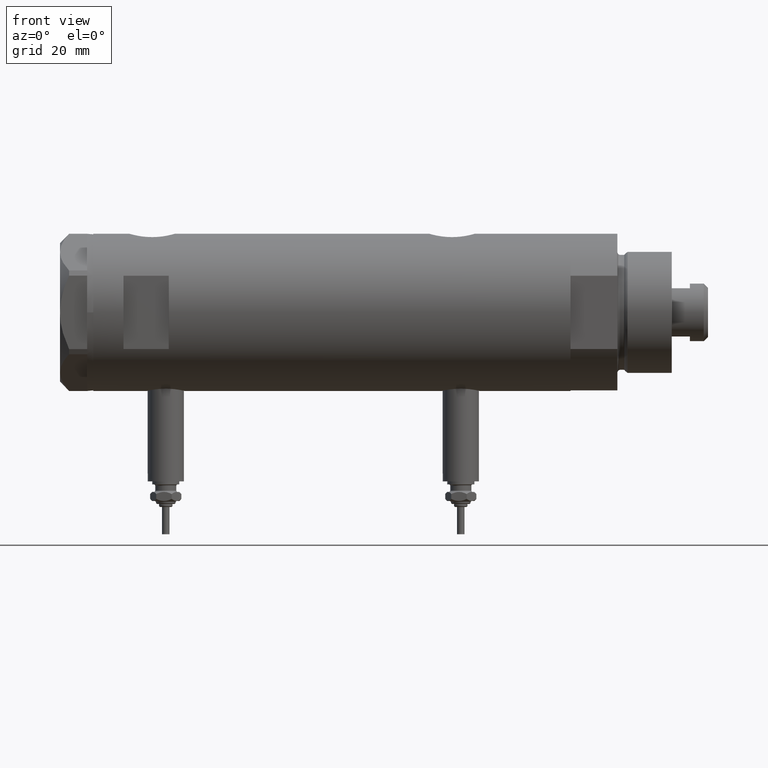
[diagram: clean part render]
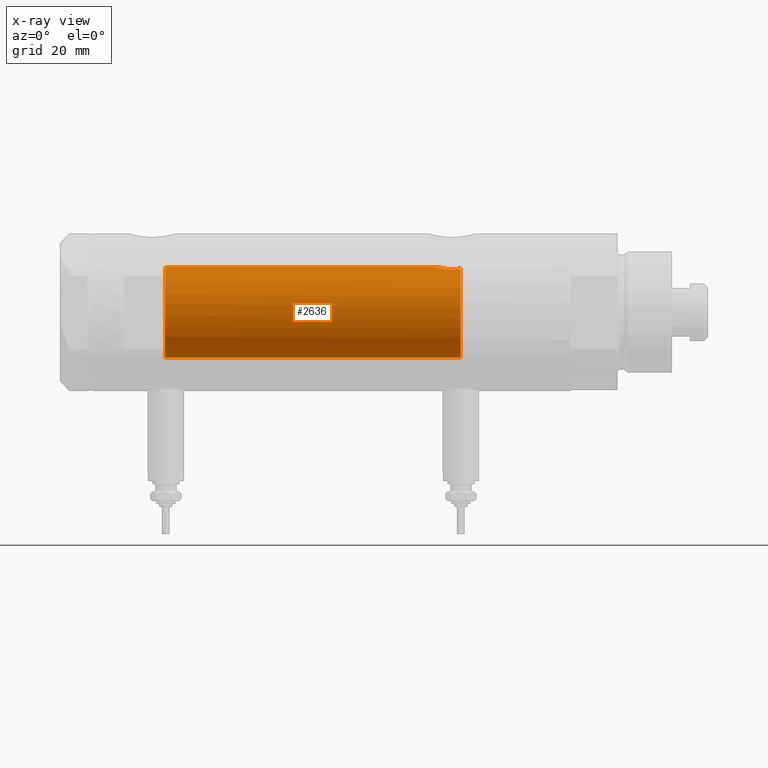
[diagram: x-ray — body ghosted, one internal face saturated and labeled with its STEP entity id]
A machine part, front view, then the same camera in x-ray: the body is ghosted and one INTERNAL B-rep face — a face not visible from any outside direction — is saturated and labeled: STEP entity #2636.
In plain terms, the highlighted cylindrical surface (partial cylindrical patch) has radius 15 mm, axis along (1, 0, -0).
Its self-contained STEP definition (entity closure, byte-faithful):
#45 = FACE_OUTER_BOUND ( 'NONE', #2878, .T. ) ;
#88 = AXIS2_PLACEMENT_3D ( 'NONE', #4889, #481, #3372 ) ;
#141 = DIRECTION ( 'NONE',  ( 0.000000000000000000, 0.000000000000000000, 1.000000000000000000 ) ) ;
#182 = CIRCLE ( 'NONE', #3865, 15.00000000000000000 ) ;
#204 = DIRECTION ( 'NONE',  ( 1.000000000000000000, 0.000000000000000000, 0.000000000000000000 ) ) ;
#216 = CARTESIAN_POINT ( 'NONE',  ( 0.000000000000000000, 0.000000000000000000, -42.55000000000000426 ) ) ;
#222 = CARTESIAN_POINT ( 'NONE',  ( 14.81710879718117546, -2.343063746046468054, -35.48067662538952050 ) ) ;
#230 = B_SPLINE_CURVE_WITH_KNOTS ( 'NONE', 3,
 ( #2293, #4124, #5103, #2680, #2710, #795, #3199, #1274, #5704, #6112, #1817, #4686, #3226, #1685, #2654, #3709, #2267, #4753, #6079, #2236, #282, #222, #4261, #3773, #3736, #2750, #5742, #5200, #4227, #6173 ),
 .UNSPECIFIED., .F., .F.,
 ( 4, 2, 2, 2, 2, 2, 2, 2, 2, 2, 2, 2, 2, 2, 4 ),
 ( 0.004672505804584289359, 0.005337629501999303222, 0.006002753199414317953, 0.006667876896829330949, 0.007333000594244345680, 0.007998124291659358676, 0.008663247989074373406, 0.009328371686489388137, 0.009993495383904402868, 0.01132374277873441151, 0.01265399017356442016, 0.01331911387097942448, 0.01398423756839442880, 0.01464936126580943312, 0.01531448496322443745 ),
 .UNSPECIFIED. ) ;
#277 = CARTESIAN_POINT ( 'NONE',  ( 15.00000000000000000, 0.000000000000000000, 54.58500000000000085 ) ) ;
#282 = CARTESIAN_POINT ( 'NONE',  ( 14.72015646623405871, -2.909233045280601893, -35.82572079632733164 ) ) ;
#481 = DIRECTION ( 'NONE',  ( -0.000000000000000000, -0.000000000000000000, -1.000000000000000000 ) ) ;
#512 = DIRECTION ( 'NONE',  ( -0.000000000000000000, -0.000000000000000000, -1.000000000000000000 ) ) ;
#539 = CYLINDRICAL_SURFACE ( 'NONE', #88, 15.00000000000000000 ) ;
#724 = CARTESIAN_POINT ( 'NONE',  ( 14.82638779339053947, -2.275571356824482638, 55.15000000000000568 ) ) ;
#752 = CARTESIAN_POINT ( 'NONE',  ( 14.98404828787190723, -0.7909490205761879889, 54.63356230794191504 ) ) ;
#795 = CARTESIAN_POINT ( 'NONE',  ( 14.25856516724843992, -4.658255869285516937, -41.17044016644936733 ) ) ;
#929 = VERTEX_POINT ( 'NONE', #3077 ) ;
#1190 = CARTESIAN_POINT ( 'NONE',  ( 0.000000000000000000, 0.000000000000000000, 55.15000000000000568 ) ) ;
#1274 = CARTESIAN_POINT ( 'NONE',  ( 14.20819413761015504, -4.809312895991456394, -40.51713251522166814 ) ) ;
#1402 = EDGE_CURVE ( 'NONE', #929, #2117, #3937, .T. ) ;
#1685 = CARTESIAN_POINT ( 'NONE',  ( 14.23984499268011028, -4.714778477509579346, -38.53008258614764969 ) ) ;
#1694 = EDGE_CURVE ( 'NONE', #1874, #3829, #3548, .T. ) ;
#1725 = ORIENTED_EDGE ( 'NONE', *, *, #1753, .F. ) ;
#1750 = DIRECTION ( 'NONE',  ( 0.000000000000000000, 0.000000000000000000, -1.000000000000000000 ) ) ;
#1751 = CARTESIAN_POINT ( 'NONE',  ( 14.85289483991917514, -2.102865829523695940, 55.05860377881607093 ) ) ;
#1753 = EDGE_CURVE ( 'NONE', #5677, #3829, #230, .T. ) ;
#1781 = CARTESIAN_POINT ( 'NONE',  ( 15.00000000000000178, -0.3999014018875943210, 54.58500000000000796 ) ) ;
#1807 = AXIS2_PLACEMENT_3D ( 'NONE', #216, #1750, #2162 ) ;
#1817 = CARTESIAN_POINT ( 'NONE',  ( 14.18786347641749757, -4.868757996482117711, -39.63322300400292875 ) ) ;
#1874 = VERTEX_POINT ( 'NONE', #5769 ) ;
#1889 = CARTESIAN_POINT ( 'NONE',  ( -15.00000000000000000, 0.000000000000000000, 78.95000000000000284 ) ) ;
#2117 = VERTEX_POINT ( 'NONE', #5893 ) ;
#2162 = DIRECTION ( 'NONE',  ( -1.000000000000000000, 0.000000000000000000, 0.000000000000000000 ) ) ;
#2191 = VECTOR ( 'NONE', #512, 1000.000000000000000 ) ;
#2236 = CARTESIAN_POINT ( 'NONE',  ( 14.64727859494137263, -3.248701865452407578, -36.10174013696653361 ) ) ;
#2267 = CARTESIAN_POINT ( 'NONE',  ( 14.33594561531104006, -4.414979644548145288, -37.69453393419243525 ) ) ;
#2293 = CARTESIAN_POINT ( 'NONE',  ( 14.46277203719950855, -3.978470183374506863, -42.55000000000000426 ) ) ;
#2589 = ORIENTED_EDGE ( 'NONE', *, *, #4572, .F. ) ;
#2636 = ADVANCED_FACE ( 'NONE', ( #45 ), #539, .F. ) ;
#2654 = CARTESIAN_POINT ( 'NONE',  ( 14.25977760983849052, -4.654557688538888627, -38.31736805897653397 ) ) ;
#2675 = CARTESIAN_POINT ( 'NONE',  ( 14.82638779339053947, -2.275571356824482638, 55.15000000000000568 ) ) ;
#2680 = CARTESIAN_POINT ( 'NONE',  ( 14.33349657381506681, -4.422893686125041413, -41.78827841538883092 ) ) ;
#2710 = CARTESIAN_POINT ( 'NONE',  ( 14.30602371879161439, -4.510400617436904014, -41.58665028800272268 ) ) ;
#2746 = CARTESIAN_POINT ( 'NONE',  ( 14.46277203719950855, -3.978470183374506863, -42.55000000000000426 ) ) ;
#2750 = CARTESIAN_POINT ( 'NONE',  ( 14.96064712090283777, -1.106639041422191827, -35.00738179736369915 ) ) ;
#2878 = EDGE_LOOP ( 'NONE', ( #2589, #5792, #1725, #5107, #6042, #4229 ) ) ;
#2999 = B_SPLINE_CURVE_WITH_KNOTS ( 'NONE', 3,
 ( #277, #1781, #752, #4619, #3196, #6107, #1751, #724 ),
 .UNSPECIFIED., .F., .F.,
 ( 4, 2, 2, 4 ),
 ( 0.000000000000000000, 0.001182100180564266828, 0.001773150270846399808, 0.002364200361128533222 ),
 .UNSPECIFIED. ) ;
#3039 = CARTESIAN_POINT ( 'NONE',  ( 15.00000000000000000, 1.836970198721029589E-15, 78.95000000000000284 ) ) ;
#3077 = CARTESIAN_POINT ( 'NONE',  ( -15.00000000000000000, 0.000000000000000000, 55.15000000000000568 ) ) ;
#3196 = CARTESIAN_POINT ( 'NONE',  ( 14.92029983160078288, -1.555365312915176768, 54.83609703141411984 ) ) ;
#3199 = CARTESIAN_POINT ( 'NONE',  ( 14.23846660849503465, -4.718934182878722794, -40.95401121469808459 ) ) ;
#3226 = CARTESIAN_POINT ( 'NONE',  ( 14.20926245015526135, -4.806160851464706063, -38.96377327795616452 ) ) ;
#3372 = DIRECTION ( 'NONE',  ( -1.000000000000000000, 0.000000000000000000, 0.000000000000000000 ) ) ;
#3548 = LINE ( 'NONE', #3039, #4147 ) ;
#3575 = VERTEX_POINT ( 'NONE', #2675 ) ;
#3604 = EDGE_CURVE ( 'NONE', #5677, #2117, #4583, .T. ) ;
#3709 = CARTESIAN_POINT ( 'NONE',  ( 14.30772250772359833, -4.505024017690383076, -37.90010806953218037 ) ) ;
#3736 = CARTESIAN_POINT ( 'NONE',  ( 14.92307637240703677, -1.532123959568890026, -35.12726557582075770 ) ) ;
#3773 = CARTESIAN_POINT ( 'NONE',  ( 14.90017778876744892, -1.739641523727902372, -35.20130925695126223 ) ) ;
#3813 = EDGE_CURVE ( 'NONE', #929, #3575, #182, .T. ) ;
#3829 = VERTEX_POINT ( 'NONE', #4043 ) ;
#3865 = AXIS2_PLACEMENT_3D ( 'NONE', #1190, #141, #204 ) ;
#3937 = LINE ( 'NONE', #1889, #2191 ) ;
#4043 = CARTESIAN_POINT ( 'NONE',  ( 15.00000000000000000, 5.959273468635536151E-16, -34.88499999999999801 ) ) ;
#4124 = CARTESIAN_POINT ( 'NONE',  ( 14.42775250319760083, -4.105775281508734054, -42.36911445102907692 ) ) ;
#4147 = VECTOR ( 'NONE', #5555, 1000.000000000000000 ) ;
#4227 = CARTESIAN_POINT ( 'NONE',  ( 15.00000000000000000, -0.2216692655473431750, -34.88499999999999091 ) ) ;
#4229 = ORIENTED_EDGE ( 'NONE', *, *, #3813, .T. ) ;
#4261 = CARTESIAN_POINT ( 'NONE',  ( 14.84733308118440220, -2.144376633039216440, -35.37751912952715827 ) ) ;
#4572 = EDGE_CURVE ( 'NONE', #1874, #3575, #2999, .T. ) ;
#4583 = CIRCLE ( 'NONE', #1807, 15.00000000000000000 ) ;
#4619 = CARTESIAN_POINT ( 'NONE',  ( 14.93900636919599911, -1.364886281976677607, 54.77622504971313333 ) ) ;
#4686 = CARTESIAN_POINT ( 'NONE',  ( 14.19858338301463441, -4.837406781463696070, -39.18614104090498529 ) ) ;
#4753 = CARTESIAN_POINT ( 'NONE',  ( 14.42796883436190214, -4.108435602805831088, -37.10726922759031510 ) ) ;
#4889 = CARTESIAN_POINT ( 'NONE',  ( 0.000000000000000000, 0.000000000000000000, 78.95000000000000284 ) ) ;
#5103 = CARTESIAN_POINT ( 'NONE',  ( 14.39424372609267877, -4.221002267729138779, -42.17893131093288872 ) ) ;
#5107 = ORIENTED_EDGE ( 'NONE', *, *, #3604, .T. ) ;
#5200 = CARTESIAN_POINT ( 'NONE',  ( 14.99508877558421993, -0.4434836953032583184, -34.90007684727662252 ) ) ;
#5555 = DIRECTION ( 'NONE',  ( -0.000000000000000000, -0.000000000000000000, -1.000000000000000000 ) ) ;
#5677 = VERTEX_POINT ( 'NONE', #2746 ) ;
#5704 = CARTESIAN_POINT ( 'NONE',  ( 14.19797987272029438, -4.839174951492910104, -40.29741451501411120 ) ) ;
#5742 = CARTESIAN_POINT ( 'NONE',  ( 14.97537530859971966, -0.8874117095427771496, -34.96137464055828303 ) ) ;
#5769 = CARTESIAN_POINT ( 'NONE',  ( 15.00000000000000000, 0.000000000000000000, 54.58500000000000085 ) ) ;
#5792 = ORIENTED_EDGE ( 'NONE', *, *, #1694, .T. ) ;
#5893 = CARTESIAN_POINT ( 'NONE',  ( -15.00000000000000000, 0.000000000000000000, -42.55000000000000426 ) ) ;
#6042 = ORIENTED_EDGE ( 'NONE', *, *, #1402, .F. ) ;
#6079 = CARTESIAN_POINT ( 'NONE',  ( 14.49994286062941562, -3.853373987417223479, -36.74743896782912600 ) ) ;
#6107 = CARTESIAN_POINT ( 'NONE',  ( 14.87720562886504183, -1.924385875533401347, 54.97741675737692191 ) ) ;
#6112 = CARTESIAN_POINT ( 'NONE',  ( 14.18781489734108270, -4.868896704194245473, -39.85545969036063241 ) ) ;
#6173 = CARTESIAN_POINT ( 'NONE',  ( 15.00000000000000000, 5.959273468635536151E-16, -34.88499999999999801 ) ) ;